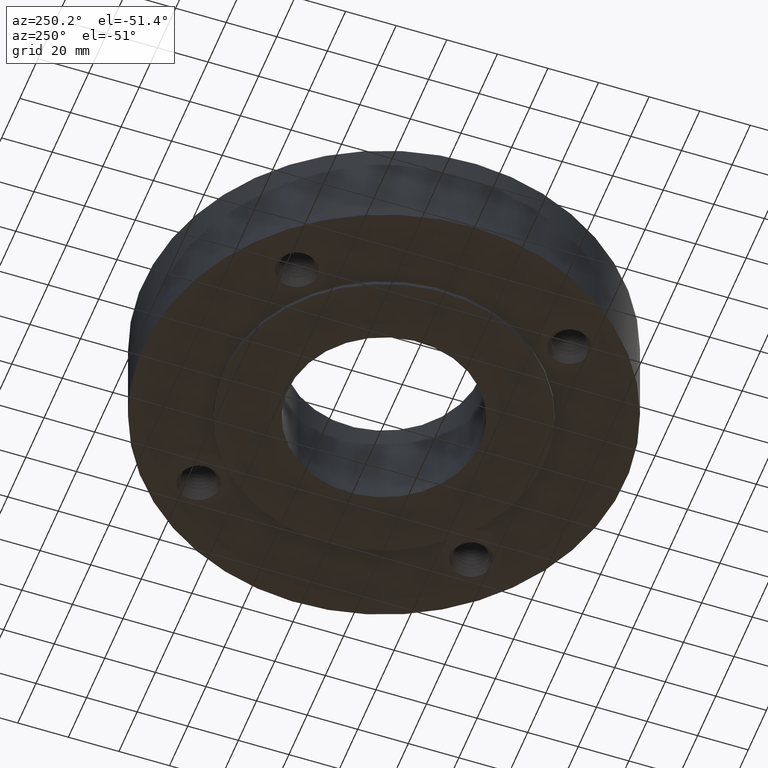
[diagram: clean part render]
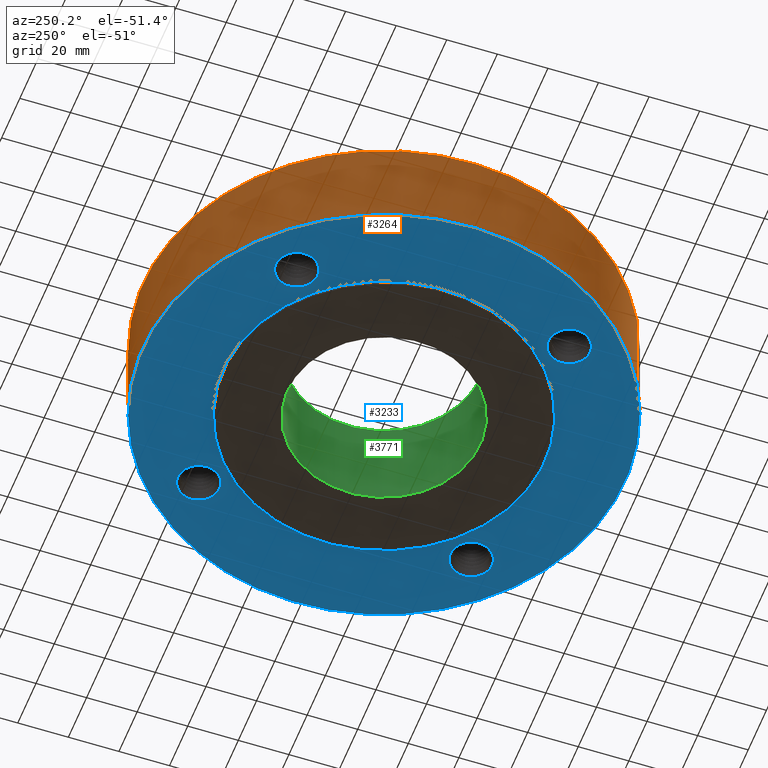
[diagram: same view with three faces highlighted in distinct colors, each labeled with its STEP entity id]
A machine part, auxiliary view with three faces highlighted in distinct colors.
Their STEP definitions:

[orange] entity #3264 — the highlighted cylindrical surface (partial cylindrical patch) has radius 95.25 mm, axis along (0, 0, -1).
#3141=AXIS2_PLACEMENT_3D('Circle Axis2P3D',#3139,#3140,$) ;
#3237=AXIS2_PLACEMENT_3D('Cylinder Axis2P3D',#3234,#3235,#3236) ;
#3248=AXIS2_PLACEMENT_3D('Circle Axis2P3D',#3246,#3247,$) ;
#3139=CARTESIAN_POINT('Axis2P3D Location',(0.,0.,0.)) ;
#3143=CARTESIAN_POINT('Vertex',(-1.79784576977,-3.2909346071,-4.02827377754E-014)) ;
#3145=CARTESIAN_POINT('Vertex',(1.79784576977,3.2909346071,-4.02827377754E-014)) ;
#3234=CARTESIAN_POINT('Axis2P3D Location',(0.,0.,0.718750000003)) ;
#3239=CARTESIAN_POINT('Line Origine',(-1.79784576977,-3.2909346071,0.750000000003)) ;
#3243=CARTESIAN_POINT('Vertex',(-1.79784576977,-3.2909346071,1.50000000001)) ;
#3246=CARTESIAN_POINT('Axis2P3D Location',(0.,0.,1.50000000001)) ;
#3250=CARTESIAN_POINT('Vertex',(1.79784576977,3.2909346071,1.50000000001)) ;
#3253=CARTESIAN_POINT('Line Origine',(1.79784576977,3.2909346071,0.750000000003)) ;
#3140=DIRECTION('Axis2P3D Direction',(0.,0.,-0.0393700787402)) ;
#3235=DIRECTION('Axis2P3D Direction',(0.,0.,-0.0393700787402)) ;
#3236=DIRECTION('Axis2P3D XDirection',(0.0188750212049,0.0345504945626,0.)) ;
#3240=DIRECTION('Vector Direction',(0.,0.,-0.0393700787402)) ;
#3247=DIRECTION('Axis2P3D Direction',(0.,0.,-0.0393700787402)) ;
#3254=DIRECTION('Vector Direction',(0.,0.,-0.0393700787402)) ;
#3241=VECTOR('Line Direction',#3240,0.0393700787402) ;
#3255=VECTOR('Line Direction',#3254,0.0393700787402) ;
#3259=ORIENTED_EDGE('',*,*,#3147,.F.) ;
#3260=ORIENTED_EDGE('',*,*,#3245,.T.) ;
#3261=ORIENTED_EDGE('',*,*,#3252,.T.) ;
#3262=ORIENTED_EDGE('',*,*,#3257,.F.) ;
#3264=ADVANCED_FACE('PartBody',(#3263),#3238,.T.) ;
#3142=CIRCLE('generated circle',#3141,3.75000000001) ;
#3249=CIRCLE('generated circle',#3248,3.75000000002) ;
#3238=CYLINDRICAL_SURFACE('generated cylinder',#3237,3.75000000002) ;
#3147=EDGE_CURVE('',#3144,#3146,#3142,.T.) ;
#3245=EDGE_CURVE('',#3144,#3244,#3242,.F.) ;
#3252=EDGE_CURVE('',#3244,#3251,#3249,.T.) ;
#3257=EDGE_CURVE('',#3146,#3251,#3256,.F.) ;
#3258=EDGE_LOOP('',(#3259,#3260,#3261,#3262)) ;
#3263=FACE_OUTER_BOUND('',#3258,.T.) ;
#3242=LINE('Line',#3239,#3241) ;
#3256=LINE('Line',#3253,#3255) ;
#3144=VERTEX_POINT('',#3143) ;
#3146=VERTEX_POINT('',#3145) ;
#3244=VERTEX_POINT('',#3243) ;
#3251=VERTEX_POINT('',#3250) ;

[blue] entity #3233 — the highlighted planar face has unit normal (0, 0, -1).
#3066=AXIS2_PLACEMENT_3D('Circle Axis2P3D',#3064,#3065,$) ;
#3123=AXIS2_PLACEMENT_3D('Circle Axis2P3D',#3121,#3122,$) ;
#3137=AXIS2_PLACEMENT_3D('Plane Axis2P3D',#3134,#3135,#3136) ;
#3141=AXIS2_PLACEMENT_3D('Circle Axis2P3D',#3139,#3140,$) ;
#3150=AXIS2_PLACEMENT_3D('Circle Axis2P3D',#3148,#3149,$) ;
#3163=AXIS2_PLACEMENT_3D('Circle Axis2P3D',#3161,#3162,$) ;
#3172=AXIS2_PLACEMENT_3D('Circle Axis2P3D',#3170,#3171,$) ;
#3181=AXIS2_PLACEMENT_3D('Circle Axis2P3D',#3179,#3180,$) ;
#3190=AXIS2_PLACEMENT_3D('Circle Axis2P3D',#3188,#3189,$) ;
#3199=AXIS2_PLACEMENT_3D('Circle Axis2P3D',#3197,#3198,$) ;
#3208=AXIS2_PLACEMENT_3D('Circle Axis2P3D',#3206,#3207,$) ;
#3217=AXIS2_PLACEMENT_3D('Circle Axis2P3D',#3215,#3216,$) ;
#3226=AXIS2_PLACEMENT_3D('Circle Axis2P3D',#3224,#3225,$) ;
#3061=CARTESIAN_POINT('Vertex',(2.40697346746,2.27737335638,-1.22386790116E-016)) ;
#3064=CARTESIAN_POINT('Axis2P3D Location',(2.12132034357,2.12132034357,0.)) ;
#3068=CARTESIAN_POINT('Vertex',(1.83566721967,1.96526733075,0.)) ;
#3121=CARTESIAN_POINT('Axis2P3D Location',(2.12132034357,2.12132034357,0.)) ;
#3134=CARTESIAN_POINT('Axis2P3D Location',(0.,3.75000000001,0.)) ;
#3139=CARTESIAN_POINT('Axis2P3D Location',(0.,0.,0.)) ;
#3143=CARTESIAN_POINT('Vertex',(-1.79784576977,-3.2909346071,-4.02827377754E-014)) ;
#3145=CARTESIAN_POINT('Vertex',(1.79784576977,3.2909346071,-4.02827377754E-014)) ;
#3148=CARTESIAN_POINT('Axis2P3D Location',(0.,0.,0.)) ;
#3161=CARTESIAN_POINT('Axis2P3D Location',(0.,0.,0.)) ;
#3165=CARTESIAN_POINT('Vertex',(1.19856384652,2.19395640473,-2.93728296279E-014)) ;
#3167=CARTESIAN_POINT('Vertex',(-1.19856384652,-2.19395640473,-2.93728296279E-014)) ;
#3170=CARTESIAN_POINT('Axis2P3D Location',(0.,0.,0.)) ;
#3179=CARTESIAN_POINT('Axis2P3D Location',(2.12132034357,-2.12132034357,0.)) ;
#3183=CARTESIAN_POINT('Vertex',(2.27737335638,-2.40697346746,0.)) ;
#3185=CARTESIAN_POINT('Vertex',(1.96526733075,-1.83566721967,0.)) ;
#3188=CARTESIAN_POINT('Axis2P3D Location',(2.12132034357,-2.12132034357,0.)) ;
#3197=CARTESIAN_POINT('Axis2P3D Location',(-2.12132034357,-2.12132034357,0.)) ;
#3201=CARTESIAN_POINT('Vertex',(-2.40697346746,-2.27737335638,0.)) ;
#3203=CARTESIAN_POINT('Vertex',(-1.83566721967,-1.96526733075,6.11933950581E-017)) ;
#3206=CARTESIAN_POINT('Axis2P3D Location',(-2.12132034357,-2.12132034357,0.)) ;
#3215=CARTESIAN_POINT('Axis2P3D Location',(-2.12132034357,2.12132034357,0.)) ;
#3219=CARTESIAN_POINT('Vertex',(-2.27737335638,2.40697346746,0.)) ;
#3221=CARTESIAN_POINT('Vertex',(-1.96526733075,1.83566721967,0.)) ;
#3224=CARTESIAN_POINT('Axis2P3D Location',(-2.12132034357,2.12132034357,0.)) ;
#3065=DIRECTION('Axis2P3D Direction',(0.,0.,-0.0393700787402)) ;
#3122=DIRECTION('Axis2P3D Direction',(0.,0.,-0.0393700787402)) ;
#3135=DIRECTION('Axis2P3D Direction',(0.,0.,-0.0393700787402)) ;
#3136=DIRECTION('Axis2P3D XDirection',(0.0393700787402,0.,0.)) ;
#3140=DIRECTION('Axis2P3D Direction',(0.,0.,-0.0393700787402)) ;
#3149=DIRECTION('Axis2P3D Direction',(0.,0.,-0.0393700787402)) ;
#3162=DIRECTION('Axis2P3D Direction',(0.,0.,-0.0393700787402)) ;
#3171=DIRECTION('Axis2P3D Direction',(0.,0.,-0.0393700787402)) ;
#3180=DIRECTION('Axis2P3D Direction',(0.,0.,-0.0393700787402)) ;
#3189=DIRECTION('Axis2P3D Direction',(0.,0.,-0.0393700787402)) ;
#3198=DIRECTION('Axis2P3D Direction',(0.,0.,-0.0393700787402)) ;
#3207=DIRECTION('Axis2P3D Direction',(0.,0.,-0.0393700787402)) ;
#3216=DIRECTION('Axis2P3D Direction',(0.,0.,-0.0393700787402)) ;
#3225=DIRECTION('Axis2P3D Direction',(0.,0.,-0.0393700787402)) ;
#3154=ORIENTED_EDGE('',*,*,#3147,.T.) ;
#3155=ORIENTED_EDGE('',*,*,#3152,.T.) ;
#3158=ORIENTED_EDGE('',*,*,#3125,.F.) ;
#3159=ORIENTED_EDGE('',*,*,#3070,.F.) ;
#3176=ORIENTED_EDGE('',*,*,#3169,.F.) ;
#3177=ORIENTED_EDGE('',*,*,#3174,.F.) ;
#3194=ORIENTED_EDGE('',*,*,#3187,.F.) ;
#3195=ORIENTED_EDGE('',*,*,#3192,.F.) ;
#3212=ORIENTED_EDGE('',*,*,#3205,.F.) ;
#3213=ORIENTED_EDGE('',*,*,#3210,.F.) ;
#3230=ORIENTED_EDGE('',*,*,#3223,.F.) ;
#3231=ORIENTED_EDGE('',*,*,#3228,.F.) ;
#3160=FACE_BOUND('',#3157,.T.) ;
#3178=FACE_BOUND('',#3175,.T.) ;
#3196=FACE_BOUND('',#3193,.T.) ;
#3214=FACE_BOUND('',#3211,.T.) ;
#3232=FACE_BOUND('',#3229,.T.) ;
#3233=ADVANCED_FACE('PartBody',(#3156,#3160,#3178,#3196,#3214,#3232),#3138,.T.) ;
#3067=CIRCLE('generated circle',#3066,0.325500000001) ;
#3124=CIRCLE('generated circle',#3123,0.325500000001) ;
#3142=CIRCLE('generated circle',#3141,3.75000000001) ;
#3151=CIRCLE('generated circle',#3150,3.75000000001) ;
#3164=CIRCLE('generated circle',#3163,2.50000000001) ;
#3173=CIRCLE('generated circle',#3172,2.50000000001) ;
#3182=CIRCLE('generated circle',#3181,0.325500000001) ;
#3191=CIRCLE('generated circle',#3190,0.325500000001) ;
#3200=CIRCLE('generated circle',#3199,0.325500000001) ;
#3209=CIRCLE('generated circle',#3208,0.325500000001) ;
#3218=CIRCLE('generated circle',#3217,0.325500000001) ;
#3227=CIRCLE('generated circle',#3226,0.325500000001) ;
#3070=EDGE_CURVE('',#3062,#3069,#3067,.T.) ;
#3125=EDGE_CURVE('',#3069,#3062,#3124,.T.) ;
#3147=EDGE_CURVE('',#3144,#3146,#3142,.T.) ;
#3152=EDGE_CURVE('',#3146,#3144,#3151,.T.) ;
#3169=EDGE_CURVE('',#3166,#3168,#3164,.T.) ;
#3174=EDGE_CURVE('',#3168,#3166,#3173,.T.) ;
#3187=EDGE_CURVE('',#3184,#3186,#3182,.T.) ;
#3192=EDGE_CURVE('',#3186,#3184,#3191,.T.) ;
#3205=EDGE_CURVE('',#3202,#3204,#3200,.T.) ;
#3210=EDGE_CURVE('',#3204,#3202,#3209,.T.) ;
#3223=EDGE_CURVE('',#3220,#3222,#3218,.T.) ;
#3228=EDGE_CURVE('',#3222,#3220,#3227,.T.) ;
#3153=EDGE_LOOP('',(#3154,#3155)) ;
#3157=EDGE_LOOP('',(#3158,#3159)) ;
#3175=EDGE_LOOP('',(#3176,#3177)) ;
#3193=EDGE_LOOP('',(#3194,#3195)) ;
#3211=EDGE_LOOP('',(#3212,#3213)) ;
#3229=EDGE_LOOP('',(#3230,#3231)) ;
#3156=FACE_OUTER_BOUND('',#3153,.T.) ;
#3138=PLANE('',#3137) ;
#3062=VERTEX_POINT('',#3061) ;
#3069=VERTEX_POINT('',#3068) ;
#3144=VERTEX_POINT('',#3143) ;
#3146=VERTEX_POINT('',#3145) ;
#3166=VERTEX_POINT('',#3165) ;
#3168=VERTEX_POINT('',#3167) ;
#3184=VERTEX_POINT('',#3183) ;
#3186=VERTEX_POINT('',#3185) ;
#3202=VERTEX_POINT('',#3201) ;
#3204=VERTEX_POINT('',#3203) ;
#3220=VERTEX_POINT('',#3219) ;
#3222=VERTEX_POINT('',#3221) ;

[green] entity #3771 — the highlighted cylindrical surface (partial cylindrical patch) has radius 38.1 mm, axis along (0, 0, -1).
#3724=AXIS2_PLACEMENT_3D('Circle Axis2P3D',#3722,#3723,$) ;
#3744=AXIS2_PLACEMENT_3D('Cylinder Axis2P3D',#3741,#3742,#3743) ;
#3748=AXIS2_PLACEMENT_3D('Circle Axis2P3D',#3746,#3747,$) ;
#3722=CARTESIAN_POINT('Axis2P3D Location',(0.,0.,-0.0625000000003)) ;
#3726=CARTESIAN_POINT('Vertex',(0.719138307909,1.31637384284,-0.0625000000003)) ;
#3728=CARTESIAN_POINT('Vertex',(-0.719138307909,-1.31637384284,-0.0625000000003)) ;
#3741=CARTESIAN_POINT('Axis2P3D Location',(0.,0.,0.718750000003)) ;
#3746=CARTESIAN_POINT('Axis2P3D Location',(0.,0.,1.50000000001)) ;
#3750=CARTESIAN_POINT('Vertex',(0.719138307909,1.31637384284,1.50000000001)) ;
#3752=CARTESIAN_POINT('Vertex',(-0.719138307909,-1.31637384284,1.50000000001)) ;
#3755=CARTESIAN_POINT('Line Origine',(0.719138307909,1.31637384284,0.718750000003)) ;
#3760=CARTESIAN_POINT('Line Origine',(-0.719138307909,-1.31637384284,0.718750000003)) ;
#3723=DIRECTION('Axis2P3D Direction',(0.,0.,-0.0393700787402)) ;
#3742=DIRECTION('Axis2P3D Direction',(0.,0.,-0.0393700787402)) ;
#3743=DIRECTION('Axis2P3D XDirection',(-0.0188750212049,-0.0345504945626,0.)) ;
#3747=DIRECTION('Axis2P3D Direction',(0.,0.,-0.0393700787402)) ;
#3756=DIRECTION('Vector Direction',(0.,0.,-0.0393700787402)) ;
#3761=DIRECTION('Vector Direction',(0.,0.,-0.0393700787402)) ;
#3757=VECTOR('Line Direction',#3756,0.0393700787402) ;
#3762=VECTOR('Line Direction',#3761,0.0393700787402) ;
#3766=ORIENTED_EDGE('',*,*,#3754,.F.) ;
#3767=ORIENTED_EDGE('',*,*,#3759,.T.) ;
#3768=ORIENTED_EDGE('',*,*,#3730,.T.) ;
#3769=ORIENTED_EDGE('',*,*,#3764,.F.) ;
#3771=ADVANCED_FACE('PartBody',(#3770),#3745,.F.) ;
#3725=CIRCLE('generated circle',#3724,1.50000000001) ;
#3749=CIRCLE('generated circle',#3748,1.50000000001) ;
#3745=CYLINDRICAL_SURFACE('generated cylinder',#3744,1.50000000001) ;
#3730=EDGE_CURVE('',#3727,#3729,#3725,.T.) ;
#3754=EDGE_CURVE('',#3751,#3753,#3749,.T.) ;
#3759=EDGE_CURVE('',#3751,#3727,#3758,.T.) ;
#3764=EDGE_CURVE('',#3753,#3729,#3763,.T.) ;
#3765=EDGE_LOOP('',(#3766,#3767,#3768,#3769)) ;
#3770=FACE_OUTER_BOUND('',#3765,.T.) ;
#3758=LINE('Line',#3755,#3757) ;
#3763=LINE('Line',#3760,#3762) ;
#3727=VERTEX_POINT('',#3726) ;
#3729=VERTEX_POINT('',#3728) ;
#3751=VERTEX_POINT('',#3750) ;
#3753=VERTEX_POINT('',#3752) ;